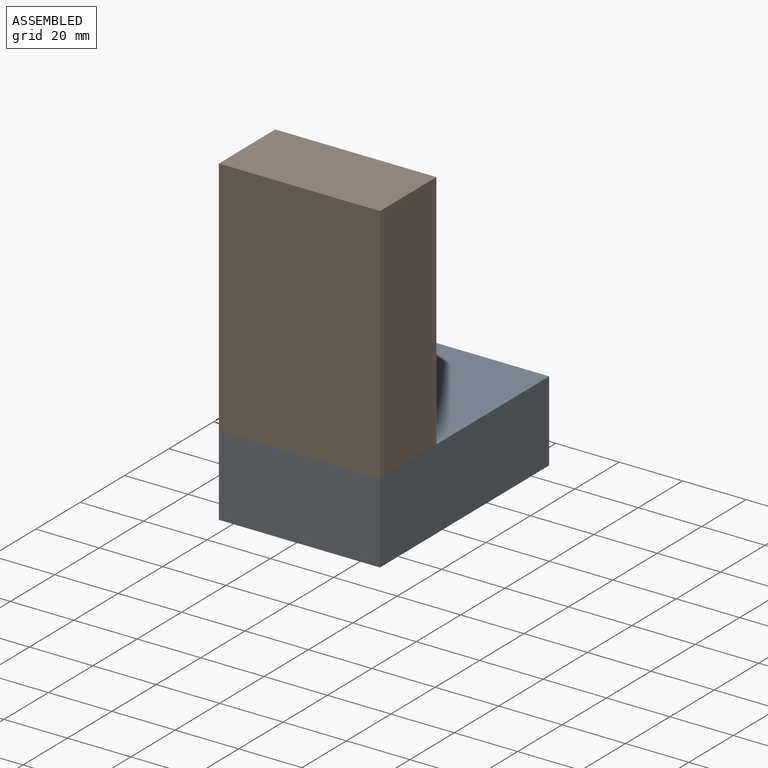
[diagram: assembled view]
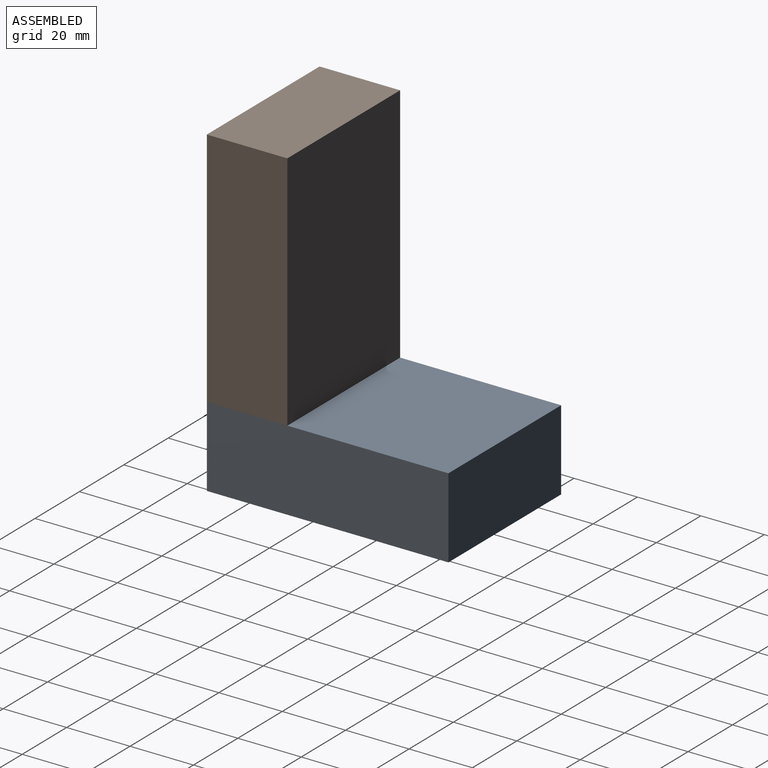
[diagram: assembled view, second angle]
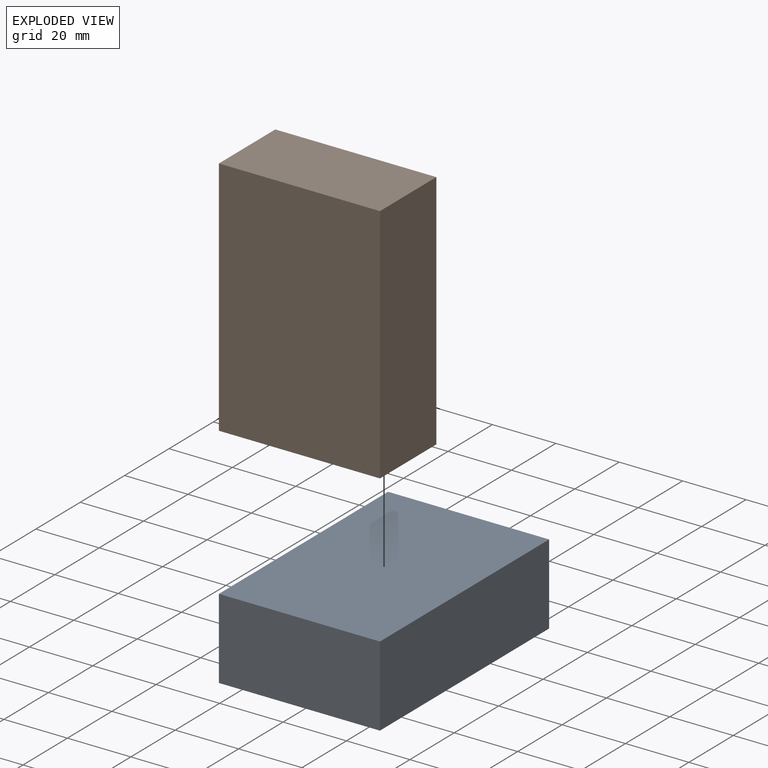
[diagram: exploded view]
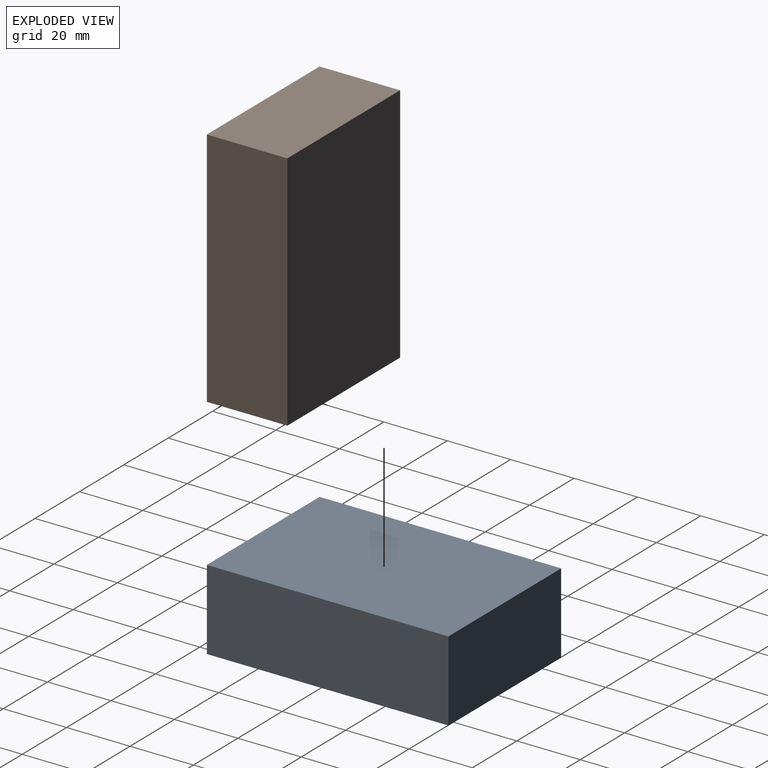
[diagram: exploded view, second angle]
ASSEMBLY  parts=2 mates=3
PART A: 6 faces, bbox 50.8x76.2x25.4 mm
  f0: plane 76.2x50.8mm, normal (0,0,1), area 3871mm2, adj f1,f3,f4,f5
  f1: plane 76.2x25.4mm, normal (-1,0,0), area 1935.5mm2, adj f0,f2,f4,f5
  f2: plane 76.2x50.8mm, normal (0,0,-1), area 3871mm2, adj f1,f3,f4,f5
  f3: plane 76.2x25.4mm, normal (1,0,0), area 1935.5mm2, adj f0,f2,f4,f5
  f4: plane 50.8x25.4mm, normal (0,-1,0), area 1290.3mm2, adj f0,f1,f2,f3
  f5: plane 50.8x25.4mm, normal (0,1,0), area 1290.3mm2, adj f0,f1,f2,f3
PART B: same geometry as A
PLACE A t=(-11,-17.34,-102.4)mm
PLACE B rot(axis=(-1,0,0),90deg) t=(-11,-53.34,-117.2)mm
MATE planar B.f5 <-> A.f0  axis (0,0,-1) through (-19.35,-80.84,-117.2)mm
MATE planar B.f2 <-> A.f4  axis (0,-1,0) through (-19.35,-93.54,-79.1)mm
MATE planar B.f3 <-> A.f3  axis (1,0,0) through (6.05,-80.84,-79.1)mm
